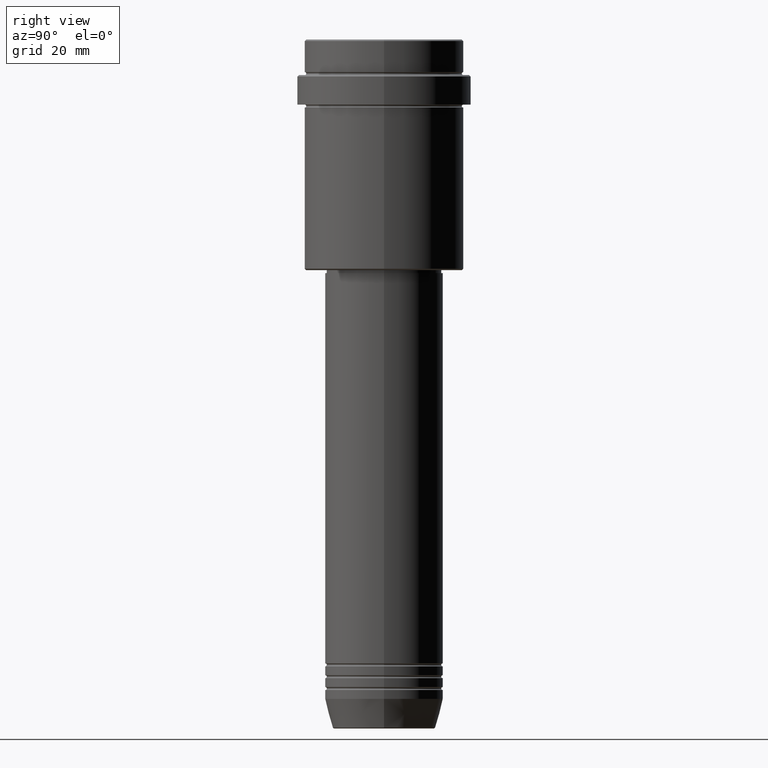
[diagram: clean part render]
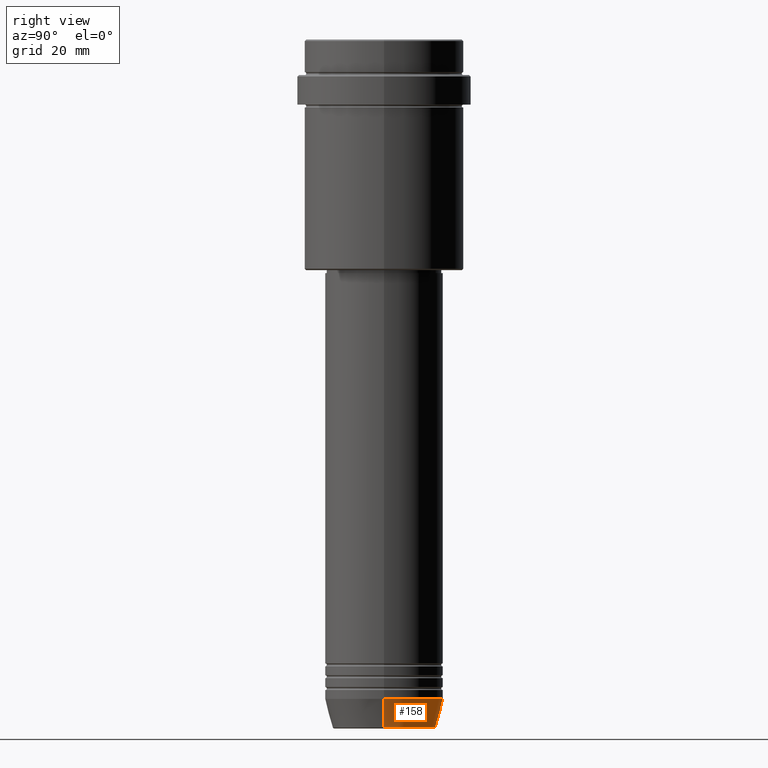
[diagram: same view with one face highlighted and labeled with its STEP entity id]
A machine part, right view. The second image highlights one B-rep face of the part: STEP entity #158.
In plain terms, the highlighted conical surface has half-angle 15 deg.
Its self-contained STEP definition (entity closure, byte-faithful):
#12 = ORIENTED_EDGE ( 'NONE', *, *, #1122, .F. ) ;
#62 = EDGE_CURVE ( 'NONE', #1242, #103, #1229, .T. ) ;
#68 = DIRECTION ( 'NONE',  ( 1.000000000000000000, 0.000000000000000000, 0.000000000000000000 ) ) ;
#103 = VERTEX_POINT ( 'NONE', #1146 ) ;
#158 = ADVANCED_FACE ( 'NONE', ( #514 ), #753, .T. ) ;
#168 = AXIS2_PLACEMENT_3D ( 'NONE', #455, #1217, #1213 ) ;
#194 = CARTESIAN_POINT ( 'NONE',  ( 20.00000000000000000, 0.000000000000000000, -223.0000000000000284 ) ) ;
#201 = CARTESIAN_POINT ( 'NONE',  ( -17.41980749484381974, 2.291302373663531126E-15, -232.6294095225512990 ) ) ;
#301 = ORIENTED_EDGE ( 'NONE', *, *, #1299, .T. ) ;
#323 = AXIS2_PLACEMENT_3D ( 'NONE', #1286, #956, #68 ) ;
#389 = VECTOR ( 'NONE', #1120, 1000.000000000000114 ) ;
#427 = CARTESIAN_POINT ( 'NONE',  ( 20.00000000000000000, 0.000000000000000000, -223.0000000000000284 ) ) ;
#455 = CARTESIAN_POINT ( 'NONE',  ( 0.000000000000000000, 0.000000000000000000, -232.6294095225512990 ) ) ;
#469 = CARTESIAN_POINT ( 'NONE',  ( 0.000000000000000000, 0.000000000000000000, -223.0000000000000284 ) ) ;
#514 = FACE_OUTER_BOUND ( 'NONE', #719, .T. ) ;
#655 = ORIENTED_EDGE ( 'NONE', *, *, #62, .T. ) ;
#680 = CARTESIAN_POINT ( 'NONE',  ( -20.00000000000000000, 2.449293598294706513E-15, -223.0000000000000284 ) ) ;
#713 = VERTEX_POINT ( 'NONE', #194 ) ;
#719 = EDGE_LOOP ( 'NONE', ( #301, #655, #12, #859 ) ) ;
#753 = CONICAL_SURFACE ( 'NONE', #323, 20.00000000000000000, 0.2617993877991492413 ) ;
#804 = CIRCLE ( 'NONE', #168, 17.41980749484381974 ) ;
#859 = ORIENTED_EDGE ( 'NONE', *, *, #1279, .F. ) ;
#956 = DIRECTION ( 'NONE',  ( -0.000000000000000000, -0.000000000000000000, 1.000000000000000000 ) ) ;
#972 = AXIS2_PLACEMENT_3D ( 'NONE', #469, #1360, #1346 ) ;
#1033 = CARTESIAN_POINT ( 'NONE',  ( 17.41980749484381974, 0.000000000000000000, -232.6294095225512990 ) ) ;
#1087 = VERTEX_POINT ( 'NONE', #1033 ) ;
#1120 = DIRECTION ( 'NONE',  ( -0.2588190451025205729, 3.169619151431761860E-17, 0.9659258262890683122 ) ) ;
#1122 = EDGE_CURVE ( 'NONE', #713, #103, #1314, .T. ) ;
#1146 = CARTESIAN_POINT ( 'NONE',  ( -20.00000000000000000, 2.449293598294706513E-15, -223.0000000000000284 ) ) ;
#1211 = VECTOR ( 'NONE', #1305, 1000.000000000000114 ) ;
#1213 = DIRECTION ( 'NONE',  ( 1.000000000000000000, 0.000000000000000000, 0.000000000000000000 ) ) ;
#1217 = DIRECTION ( 'NONE',  ( -0.000000000000000000, -0.000000000000000000, 1.000000000000000000 ) ) ;
#1229 = LINE ( 'NONE', #680, #389 ) ;
#1242 = VERTEX_POINT ( 'NONE', #201 ) ;
#1279 = EDGE_CURVE ( 'NONE', #1087, #713, #1411, .T. ) ;
#1286 = CARTESIAN_POINT ( 'NONE',  ( 0.000000000000000000, 0.000000000000000000, -223.0000000000000284 ) ) ;
#1299 = EDGE_CURVE ( 'NONE', #1087, #1242, #804, .T. ) ;
#1305 = DIRECTION ( 'NONE',  ( 0.2588190451025205729, 0.000000000000000000, 0.9659258262890683122 ) ) ;
#1314 = CIRCLE ( 'NONE', #972, 20.00000000000000000 ) ;
#1346 = DIRECTION ( 'NONE',  ( 1.000000000000000000, 0.000000000000000000, 0.000000000000000000 ) ) ;
#1360 = DIRECTION ( 'NONE',  ( -0.000000000000000000, -0.000000000000000000, 1.000000000000000000 ) ) ;
#1411 = LINE ( 'NONE', #427, #1211 ) ;